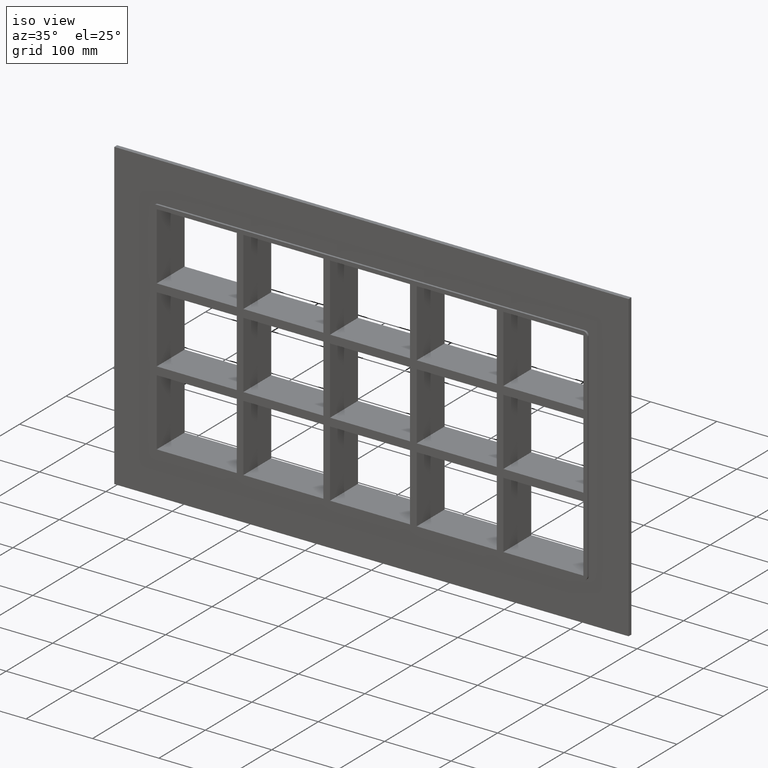
[diagram: clean part render]
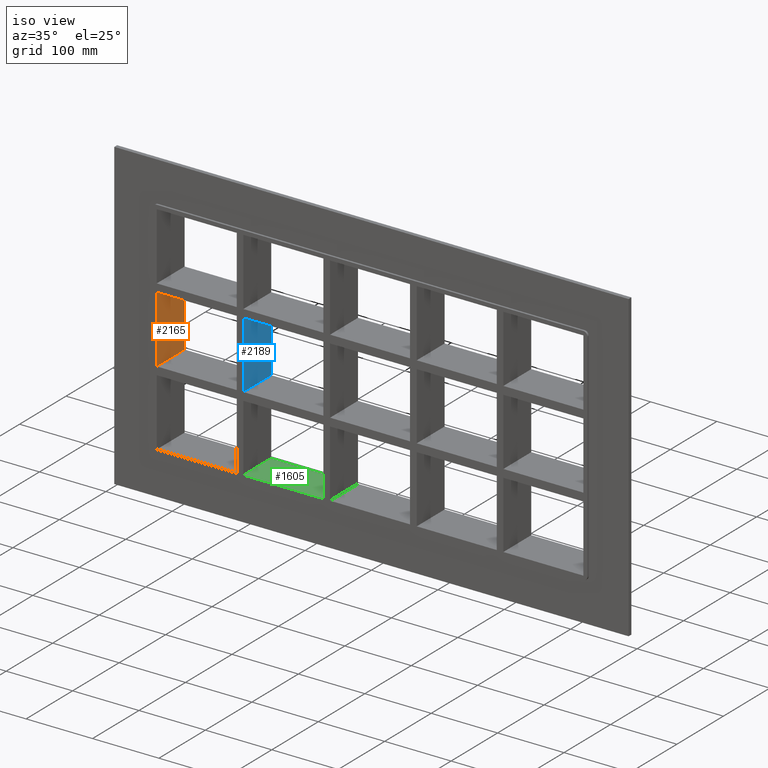
[diagram: same view with three faces highlighted in distinct colors, each labeled with its STEP entity id]
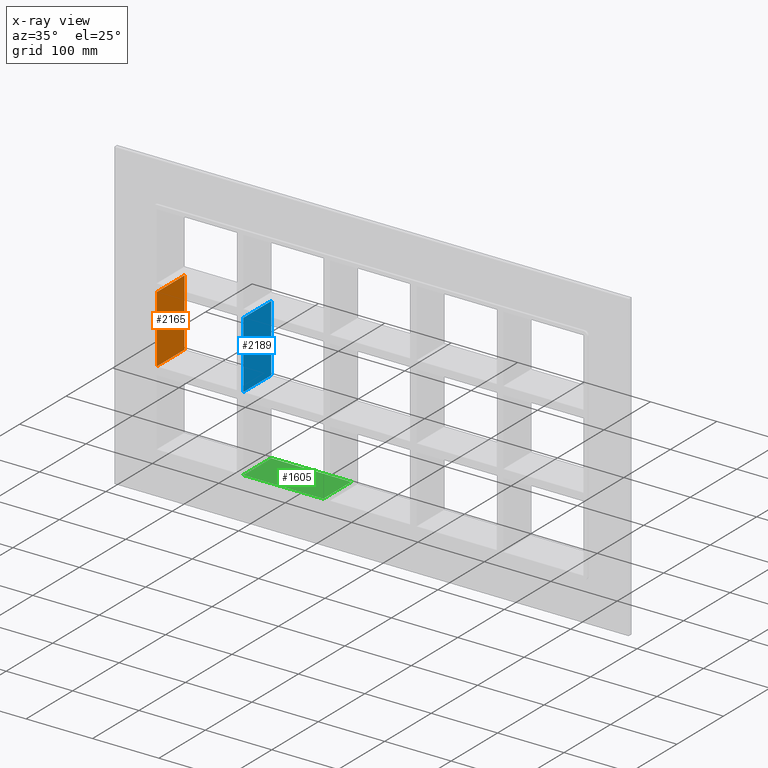
[diagram: x-ray of the same camera — body ghosted, the three highlighted faces saturated]
A machine part, iso view with three faces highlighted in distinct colors.
The next image is the same camera in x-ray (body ghosted, the three faces saturated) — at least one of them is partly hidden behind the body in this view.
Their STEP definitions:

[orange] entity #2165 — the highlighted planar face has unit normal (-1, 0, 0).
#83=CARTESIAN_POINT('',(-321.24999999999972,-3.0,50.499999999990628));
#84=VERTEX_POINT('',#83);
#91=CARTESIAN_POINT('',(-321.24999999999972,57.0,50.499999999990628));
#92=VERTEX_POINT('',#91);
#93=CARTESIAN_POINT('',(-321.25,57.000000000000007,50.499999999990628));
#94=DIRECTION('',(0.0,-1.0,0.0));
#95=VECTOR('',#94,60.000000000000007);
#96=LINE('',#93,#95);
#97=EDGE_CURVE('',#92,#84,#96,.T.);
#915=CARTESIAN_POINT('',(-321.24999999999972,57.0,-50.500000000000114));
#916=VERTEX_POINT('',#915);
#917=CARTESIAN_POINT('',(-321.25,57.0,50.499999999990621));
#918=DIRECTION('',(0.0,0.0,-1.0));
#919=VECTOR('',#918,100.99999999999073);
#920=LINE('',#917,#919);
#921=EDGE_CURVE('',#92,#916,#920,.T.);
#1836=CARTESIAN_POINT('',(-321.24999999999972,-3.0,-50.500000000000114));
#1837=VERTEX_POINT('',#1836);
#1844=CARTESIAN_POINT('',(-321.25,-3.0,-50.500000000000114));
#1845=DIRECTION('',(0.0,0.0,1.0));
#1846=VECTOR('',#1845,100.99999999999073);
#1847=LINE('',#1844,#1846);
#1848=EDGE_CURVE('',#1837,#84,#1847,.T.);
#2144=CARTESIAN_POINT('',(-321.25,-3.0,-50.500000000000114));
#2145=DIRECTION('',(0.0,1.0,0.0));
#2146=VECTOR('',#2145,60.000000000000007);
#2147=LINE('',#2144,#2146);
#2148=EDGE_CURVE('',#1837,#916,#2147,.T.);
#2154=CARTESIAN_POINT('',(-321.25,0.0,-163.5));
#2155=DIRECTION('',(-1.0,0.0,0.0));
#2156=DIRECTION('',(0.0,0.0,1.0));
#2157=AXIS2_PLACEMENT_3D('',#2154,#2155,#2156);
#2158=PLANE('',#2157);
#2159=ORIENTED_EDGE('',*,*,#97,.T.);
#2160=ORIENTED_EDGE('',*,*,#1848,.F.);
#2161=ORIENTED_EDGE('',*,*,#2148,.T.);
#2162=ORIENTED_EDGE('',*,*,#921,.F.);
#2163=EDGE_LOOP('',(#2159,#2160,#2161,#2162));
#2164=FACE_OUTER_BOUND('',#2163,.T.);
#2165=ADVANCED_FACE('',(#2164),#2158,.F.);

[blue] entity #2189 — the highlighted planar face has unit normal (1, 0, 0).
#123=CARTESIAN_POINT('',(-190.75000000000728,-3.0,50.499999999990663));
#124=VERTEX_POINT('',#123);
#131=CARTESIAN_POINT('',(-190.75000000000728,57.0,50.499999999990663));
#132=VERTEX_POINT('',#131);
#133=CARTESIAN_POINT('',(-190.75000000000728,57.0,50.499999999990663));
#134=DIRECTION('',(0.0,-1.0,0.0));
#135=VECTOR('',#134,60.0);
#136=LINE('',#133,#135);
#137=EDGE_CURVE('',#132,#124,#136,.T.);
#1046=CARTESIAN_POINT('',(-190.75000000000728,57.0,-50.500000000000114));
#1047=VERTEX_POINT('',#1046);
#1048=CARTESIAN_POINT('',(-190.75000000000728,57.0,50.499999999990649));
#1049=DIRECTION('',(0.0,0.0,-1.0));
#1050=VECTOR('',#1049,100.99999999999076);
#1051=LINE('',#1048,#1050);
#1052=EDGE_CURVE('',#132,#1047,#1051,.T.);
#1784=CARTESIAN_POINT('',(-190.75000000000728,-3.0,-50.500000000000114));
#1785=VERTEX_POINT('',#1784);
#1792=CARTESIAN_POINT('',(-190.75000000000728,-3.0,50.499999999990649));
#1793=DIRECTION('',(0.0,0.0,-1.0));
#1794=VECTOR('',#1793,100.99999999999076);
#1795=LINE('',#1792,#1794);
#1796=EDGE_CURVE('',#124,#1785,#1795,.T.);
#2009=CARTESIAN_POINT('',(-190.75000000000728,-3.0,-50.500000000000114));
#2010=DIRECTION('',(0.0,1.0,0.0));
#2011=VECTOR('',#2010,60.0);
#2012=LINE('',#2009,#2011);
#2013=EDGE_CURVE('',#1785,#1047,#2012,.T.);
#2178=CARTESIAN_POINT('',(-190.75000000000728,-3.0,163.5));
#2179=DIRECTION('',(1.0,0.0,0.0));
#2180=DIRECTION('',(0.0,0.0,-1.0));
#2181=AXIS2_PLACEMENT_3D('',#2178,#2179,#2180);
#2182=PLANE('',#2181);
#2183=ORIENTED_EDGE('',*,*,#137,.T.);
#2184=ORIENTED_EDGE('',*,*,#1796,.T.);
#2185=ORIENTED_EDGE('',*,*,#2013,.T.);
#2186=ORIENTED_EDGE('',*,*,#1052,.F.);
#2187=EDGE_LOOP('',(#2183,#2184,#2185,#2186));
#2188=FACE_OUTER_BOUND('',#2187,.T.);
#2189=ADVANCED_FACE('',(#2188),#2182,.T.);

[green] entity #1605 — the highlighted planar face has unit normal (0, 0, -1).
#1104=CARTESIAN_POINT('',(-70.250000000001307,57.0,-163.5));
#1105=VERTEX_POINT('',#1104);
#1122=CARTESIAN_POINT('',(-190.75000000000728,57.0,-163.49999999998425));
#1123=VERTEX_POINT('',#1122);
#1130=CARTESIAN_POINT('',(-190.75000000000728,57.0,-163.5));
#1131=DIRECTION('',(1.0,0.0,0.0));
#1132=VECTOR('',#1131,120.50000000000597);
#1133=LINE('',#1130,#1132);
#1134=EDGE_CURVE('',#1123,#1105,#1133,.T.);
#1510=CARTESIAN_POINT('',(-70.250000000001307,-3.0,-163.5));
#1511=VERTEX_POINT('',#1510);
#1512=CARTESIAN_POINT('',(-70.250000000001322,-3.0,-163.5));
#1513=DIRECTION('',(0.0,1.0,0.0));
#1514=VECTOR('',#1513,60.000000000000007);
#1515=LINE('',#1512,#1514);
#1516=EDGE_CURVE('',#1511,#1105,#1515,.T.);
#1582=CARTESIAN_POINT('',(321.25,0.0,-163.5));
#1583=DIRECTION('',(0.0,0.0,-1.0));
#1584=DIRECTION('',(-1.0,0.0,0.0));
#1585=AXIS2_PLACEMENT_3D('',#1582,#1583,#1584);
#1586=PLANE('',#1585);
#1587=ORIENTED_EDGE('',*,*,#1516,.T.);
#1588=ORIENTED_EDGE('',*,*,#1134,.F.);
#1589=CARTESIAN_POINT('',(-190.75000000000728,-3.0,-163.49999999998428));
#1590=VERTEX_POINT('',#1589);
#1591=CARTESIAN_POINT('',(-190.75000000000728,57.000000000000007,-163.5));
#1592=DIRECTION('',(0.0,-1.0,0.0));
#1593=VECTOR('',#1592,60.000000000000007);
#1594=LINE('',#1591,#1593);
#1595=EDGE_CURVE('',#1123,#1590,#1594,.T.);
#1596=ORIENTED_EDGE('',*,*,#1595,.T.);
#1597=CARTESIAN_POINT('',(-70.250000000001307,-3.0,-163.5));
#1598=DIRECTION('',(-1.0,0.0,0.0));
#1599=VECTOR('',#1598,120.50000000000597);
#1600=LINE('',#1597,#1599);
#1601=EDGE_CURVE('',#1511,#1590,#1600,.T.);
#1602=ORIENTED_EDGE('',*,*,#1601,.F.);
#1603=EDGE_LOOP('',(#1587,#1588,#1596,#1602));
#1604=FACE_OUTER_BOUND('',#1603,.T.);
#1605=ADVANCED_FACE('',(#1604),#1586,.F.);